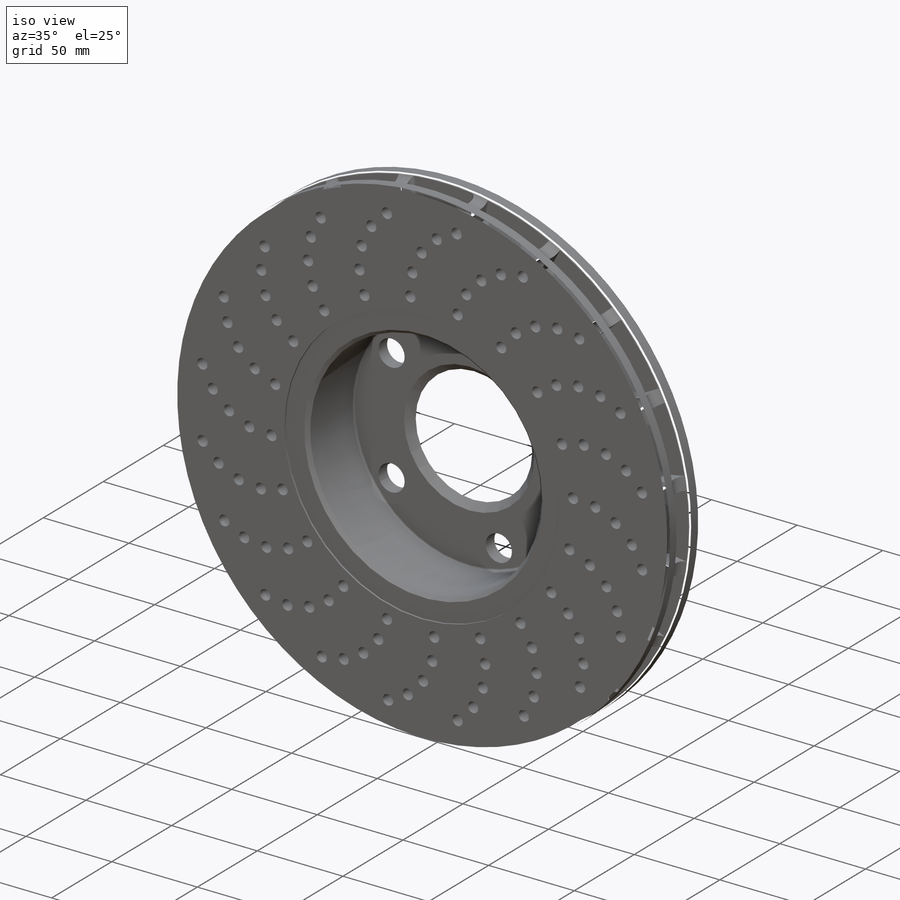
[diagram: iso view]
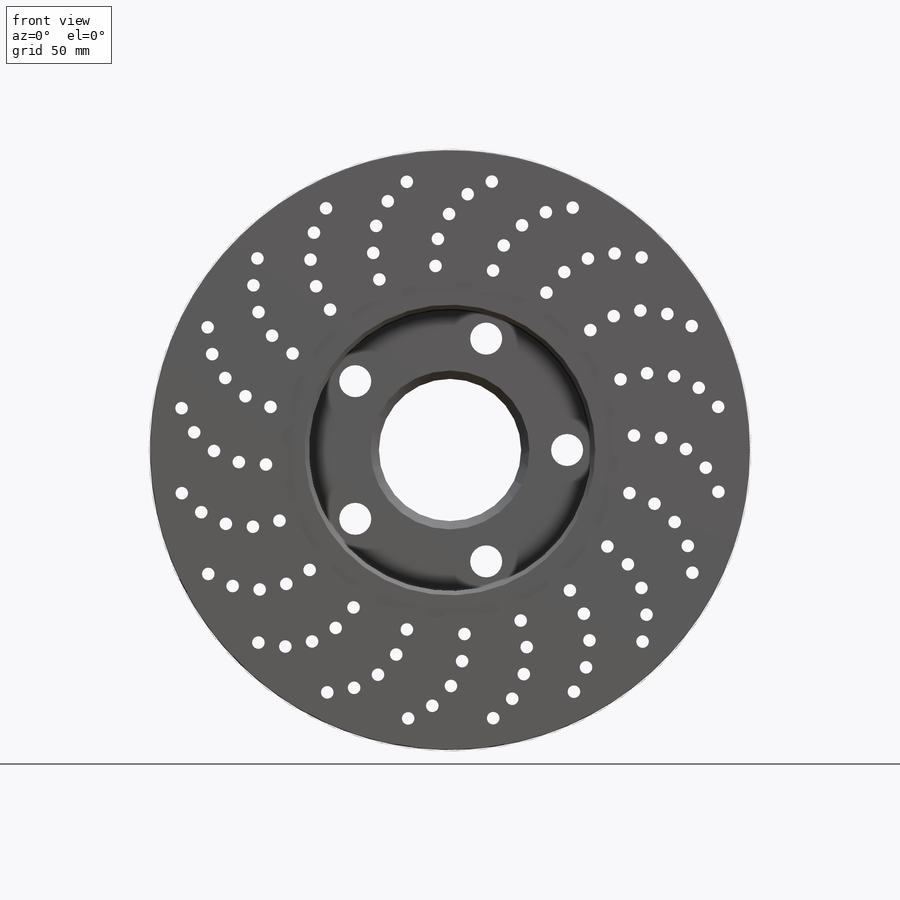
[diagram: front view]
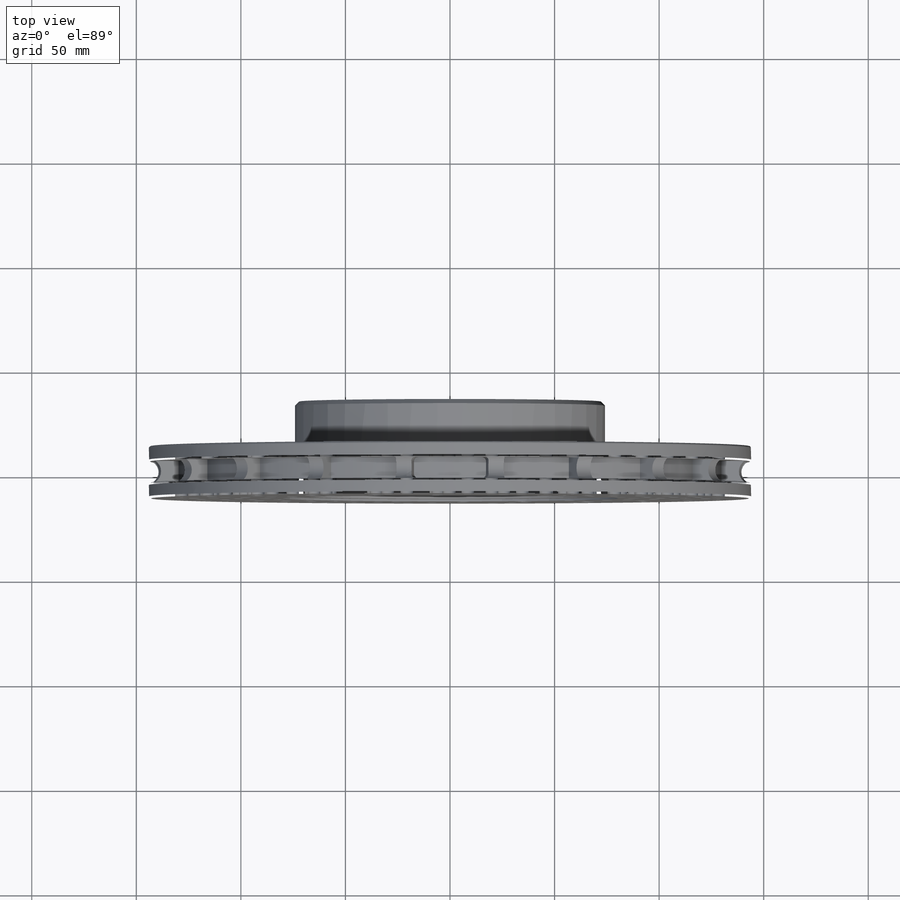
[diagram: top view]
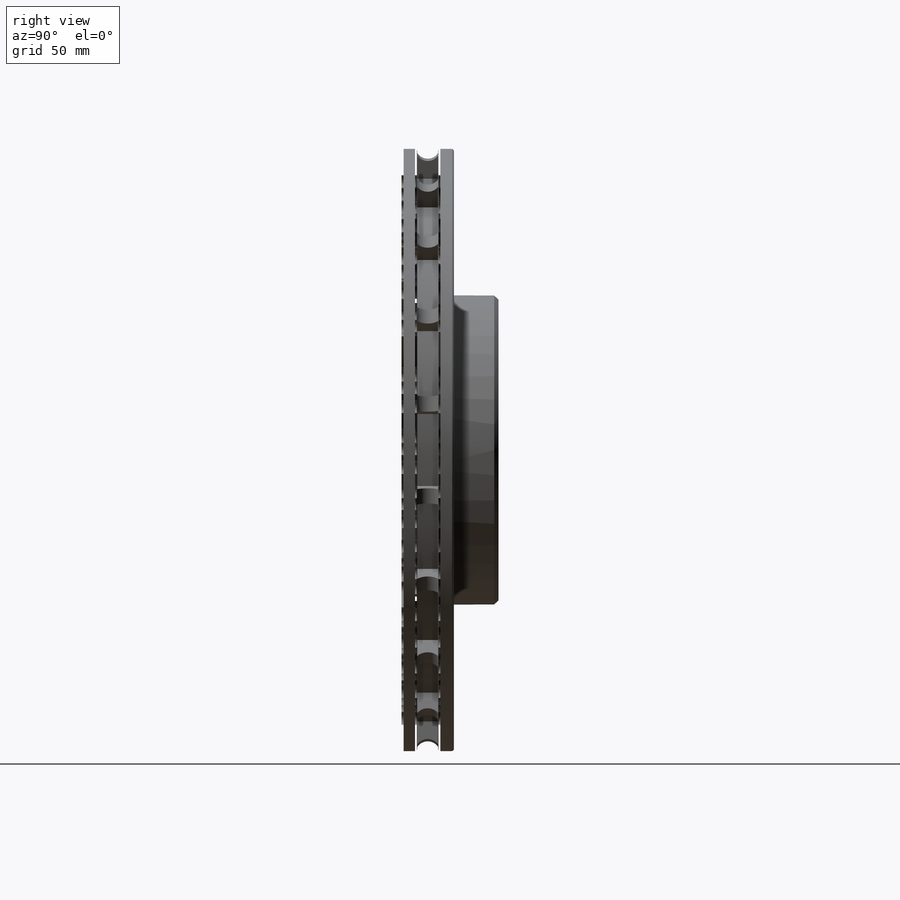
[diagram: right view]
SOLIDWORKS PART (.sldprt)
format: sldprt  version: not decoded by parser v0  size: 711,168 bytes
history: native  units: mm
features: sketch x12, cut_extrude x5, extrude x4, chamfer x4, fillet x3, pattern_circular x3, cut_revolve x2, material x1 (+11 scaffold rows collapsed)
feature tree (45):
  scaffold x11  (default folders/planes/origin — collapsed)
  material  "Material <not specified>"
  sketch  "Sketch1"  dims[D1=288.0mm]
  extrude  "Boss-Extrude1"  Depth=10mm
  sketch  "Sketch2"  dims[D1=161.0mm]
  cut_extrude  "Cut-Extrude1"  Depth=1mm
  sketch  "Sketch3"  dims[D1=135.0mm]
  cut_extrude  "Cut-Extrude2"  [1 undecoded]
  sketch  "Sketch4"  dims[D1=148.25mm]
  extrude  "Boss-Extrude2"  Depth=46.33mm
  sketch  "Sketch5"
  extrude  "Boss-Extrude3"  Depth=7.2mm
  sketch  "Sketch6"  dims[D1=68.0mm]
  cut_extrude  "Cut-Extrude3"  [1 undecoded]
  sketch  "Sketch7"  dims[D1=161.0mm]
  extrude  "Boss-Extrude4"  Depth=15mm
  sketch  "Sketch8"  dims[D1=22.0mm D2=10.0mm D3=12.0mm]
  cut_revolve  "Cut-Revolve1"  Angle=15deg
  fillet  "Fillet1"  Radius=2mm
  pattern_circular  "CirPattern1"  Count=20 Angle=360deg
  sketch  "Sketch9"  dims[D1=12.0mm D2=146.5mm]
  cut_revolve  "Cut-Revolve2"  Angle=360deg
  chamfer  "Chamfer1"  Distance=4mm Angle=45deg
  chamfer  "Chamfer2"  Distance=3.2mm Angle=45deg
  sketch  "Sketch10"  dims[D1=15.3mm D2=56.0mm]
  cut_extrude  "Cut-Extrude4"  [1 undecoded]
  pattern_circular  "CirPattern2"  Count=5 Angle=360deg
  chamfer  "Chamfer3"  Distance=2mm Angle=45deg
  sketch  "Sketch11"  dims[c1.D1=0.0mm c1.D2=~22.714469mm c1.D3=~92.818615mm c1.D4=0.0mm c1.D5=30.0mm c2.D1=0.0mm c2.D2=38.0mm c2.D3=88.0mm c2.D6=~95.851849mm c3.D6=4.5deg]
  sketch  "Sketch12"  dims[D1=6.0mm]
  cut_extrude  "Cut-Extrude5"  Depth=5
  pattern_circular  "CirPattern3"  Count=20 Angle=360deg
  chamfer  "Chamfer4"  Distance=2mm Angle=45deg
  fillet  "Fillet2"  Radius=1mm
  fillet  "Fillet3"  Radius=1mm
decode coverage: 29 of 33 modeling features carry decoded parameters
note: ~ marks probable driven/reference dimensions
note: 3 parameter values undecoded
summary: no parameter record found for 3 features
note: suppression state not decoded; provenance and decode notes live in map.json
